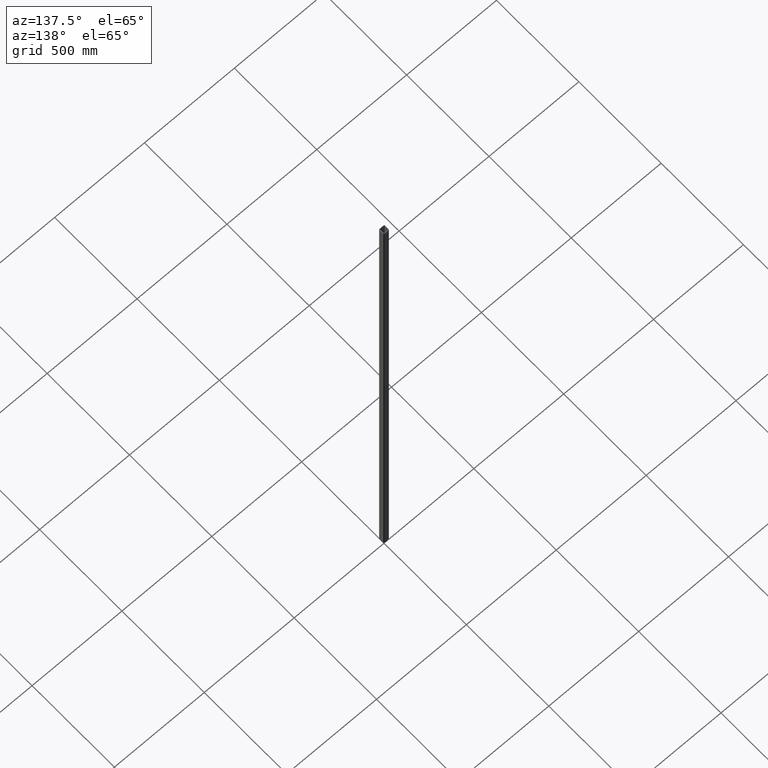
[diagram: clean part render]
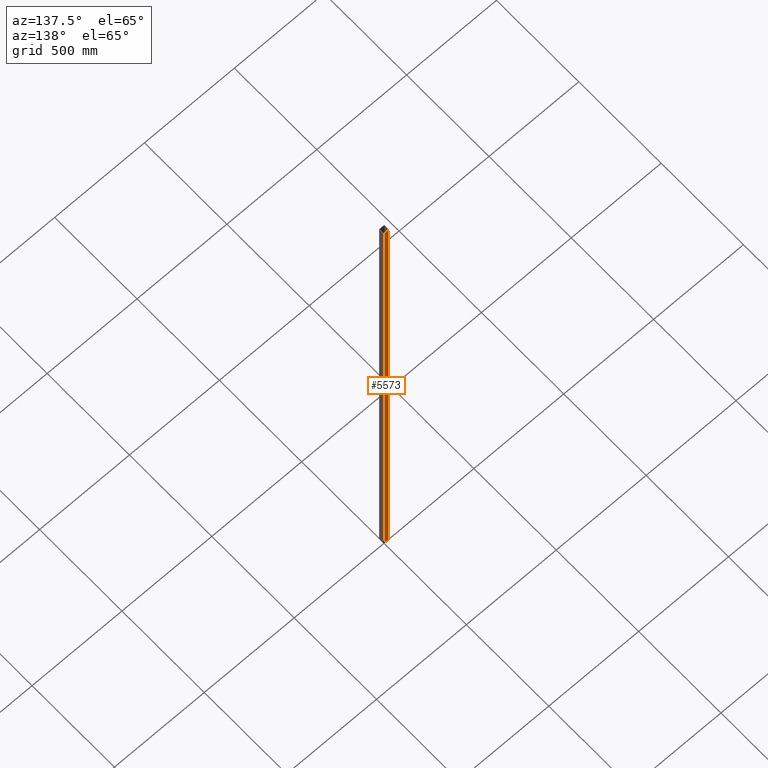
[diagram: same view with one face highlighted and labeled with its STEP entity id]
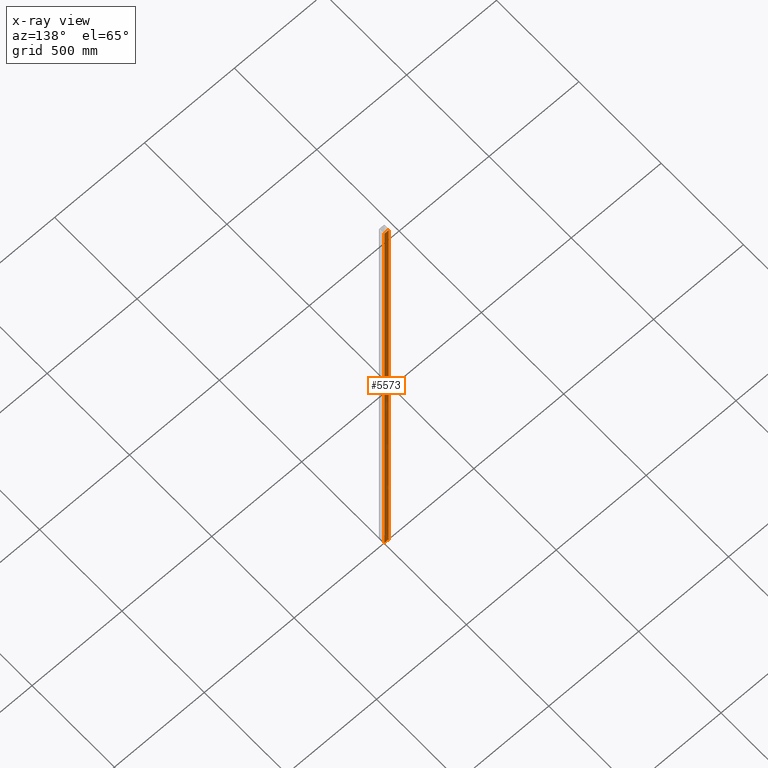
[diagram: x-ray of the same camera — body ghosted, the highlighted face saturated]
A machine part, auxiliary view. The second image highlights one B-rep face of the part: STEP entity #5573.
The next image is the same camera in x-ray: the body ghosted, the highlighted face saturated — about 0% of this face is hidden behind the body in this view.
In plain terms, the highlighted planar face has unit normal (0, -1, 0).
Its self-contained STEP definition (entity closure, byte-faithful):
#316 = DIRECTION ( 'NONE',  ( -0.000000000000000000, -0.000000000000000000, -1.000000000000000000 ) ) ;
#738 = VECTOR ( 'NONE', #7146, 1000.000000000000000 ) ;
#846 = VERTEX_POINT ( 'NONE', #16466 ) ;
#1374 = DIRECTION ( 'NONE',  ( 0.000000000000000000, -1.000000000000000000, 0.000000000000000000 ) ) ;
#2154 = DIRECTION ( 'NONE',  ( -0.000000000000000000, -0.000000000000000000, -1.000000000000000000 ) ) ;
#2156 = VECTOR ( 'NONE', #2154, 1000.000000000000000 ) ;
#2281 = CARTESIAN_POINT ( 'NONE',  ( 12.00000000000000178, 14.99999999999999645, -1500.000000000000000 ) ) ;
#3704 = LINE ( 'NONE', #5798, #10599 ) ;
#4215 = LINE ( 'NONE', #10789, #17155 ) ;
#5573 = ADVANCED_FACE ( 'NONE', ( #14034 ), #10511, .F. ) ;
#5798 = CARTESIAN_POINT ( 'NONE',  ( -12.00000000000000000, 14.99999999999999645, 1500.000000000000000 ) ) ;
#5938 = VERTEX_POINT ( 'NONE', #2281 ) ;
#7146 = DIRECTION ( 'NONE',  ( -1.000000000000000000, -0.000000000000000000, -0.000000000000000000 ) ) ;
#7907 = DIRECTION ( 'NONE',  ( 0.000000000000000000, -0.000000000000000000, -1.000000000000000000 ) ) ;
#8250 = LINE ( 'NONE', #8445, #738 ) ;
#8418 = LINE ( 'NONE', #12834, #2156 ) ;
#8445 = CARTESIAN_POINT ( 'NONE',  ( -12.00000000000000000, 14.99999999999999645, -1500.000000000000000 ) ) ;
#8450 = DIRECTION ( 'NONE',  ( -1.000000000000000000, -0.000000000000000000, -0.000000000000000000 ) ) ;
#8770 = VERTEX_POINT ( 'NONE', #14536 ) ;
#9231 = CARTESIAN_POINT ( 'NONE',  ( -12.00000000000000000, 14.99999999999999645, 1500.000000000000000 ) ) ;
#9572 = AXIS2_PLACEMENT_3D ( 'NONE', #9231, #1374, #7907 ) ;
#9592 = EDGE_CURVE ( 'NONE', #12501, #8770, #3704, .T. ) ;
#10032 = ORIENTED_EDGE ( 'NONE', *, *, #16033, .F. ) ;
#10511 = PLANE ( 'NONE',  #9572 ) ;
#10599 = VECTOR ( 'NONE', #8450, 1000.000000000000000 ) ;
#10789 = CARTESIAN_POINT ( 'NONE',  ( 12.00000000000000178, 14.99999999999999645, 1500.000000000000000 ) ) ;
#11646 = ORIENTED_EDGE ( 'NONE', *, *, #14010, .T. ) ;
#12248 = ORIENTED_EDGE ( 'NONE', *, *, #9592, .F. ) ;
#12501 = VERTEX_POINT ( 'NONE', #13961 ) ;
#12834 = CARTESIAN_POINT ( 'NONE',  ( -12.00000000000000000, 14.99999999999999645, 1500.000000000000000 ) ) ;
#13961 = CARTESIAN_POINT ( 'NONE',  ( 12.00000000000000178, 14.99999999999999645, 1500.000000000000000 ) ) ;
#14010 = EDGE_CURVE ( 'NONE', #5938, #846, #8250, .T. ) ;
#14034 = FACE_OUTER_BOUND ( 'NONE', #15342, .T. ) ;
#14536 = CARTESIAN_POINT ( 'NONE',  ( -12.00000000000000000, 14.99999999999999645, 1500.000000000000000 ) ) ;
#15342 = EDGE_LOOP ( 'NONE', ( #11646, #10032, #12248, #16219 ) ) ;
#16033 = EDGE_CURVE ( 'NONE', #8770, #846, #8418, .T. ) ;
#16219 = ORIENTED_EDGE ( 'NONE', *, *, #16496, .T. ) ;
#16466 = CARTESIAN_POINT ( 'NONE',  ( -12.00000000000000000, 14.99999999999999645, -1500.000000000000000 ) ) ;
#16496 = EDGE_CURVE ( 'NONE', #12501, #5938, #4215, .T. ) ;
#17155 = VECTOR ( 'NONE', #316, 1000.000000000000000 ) ;